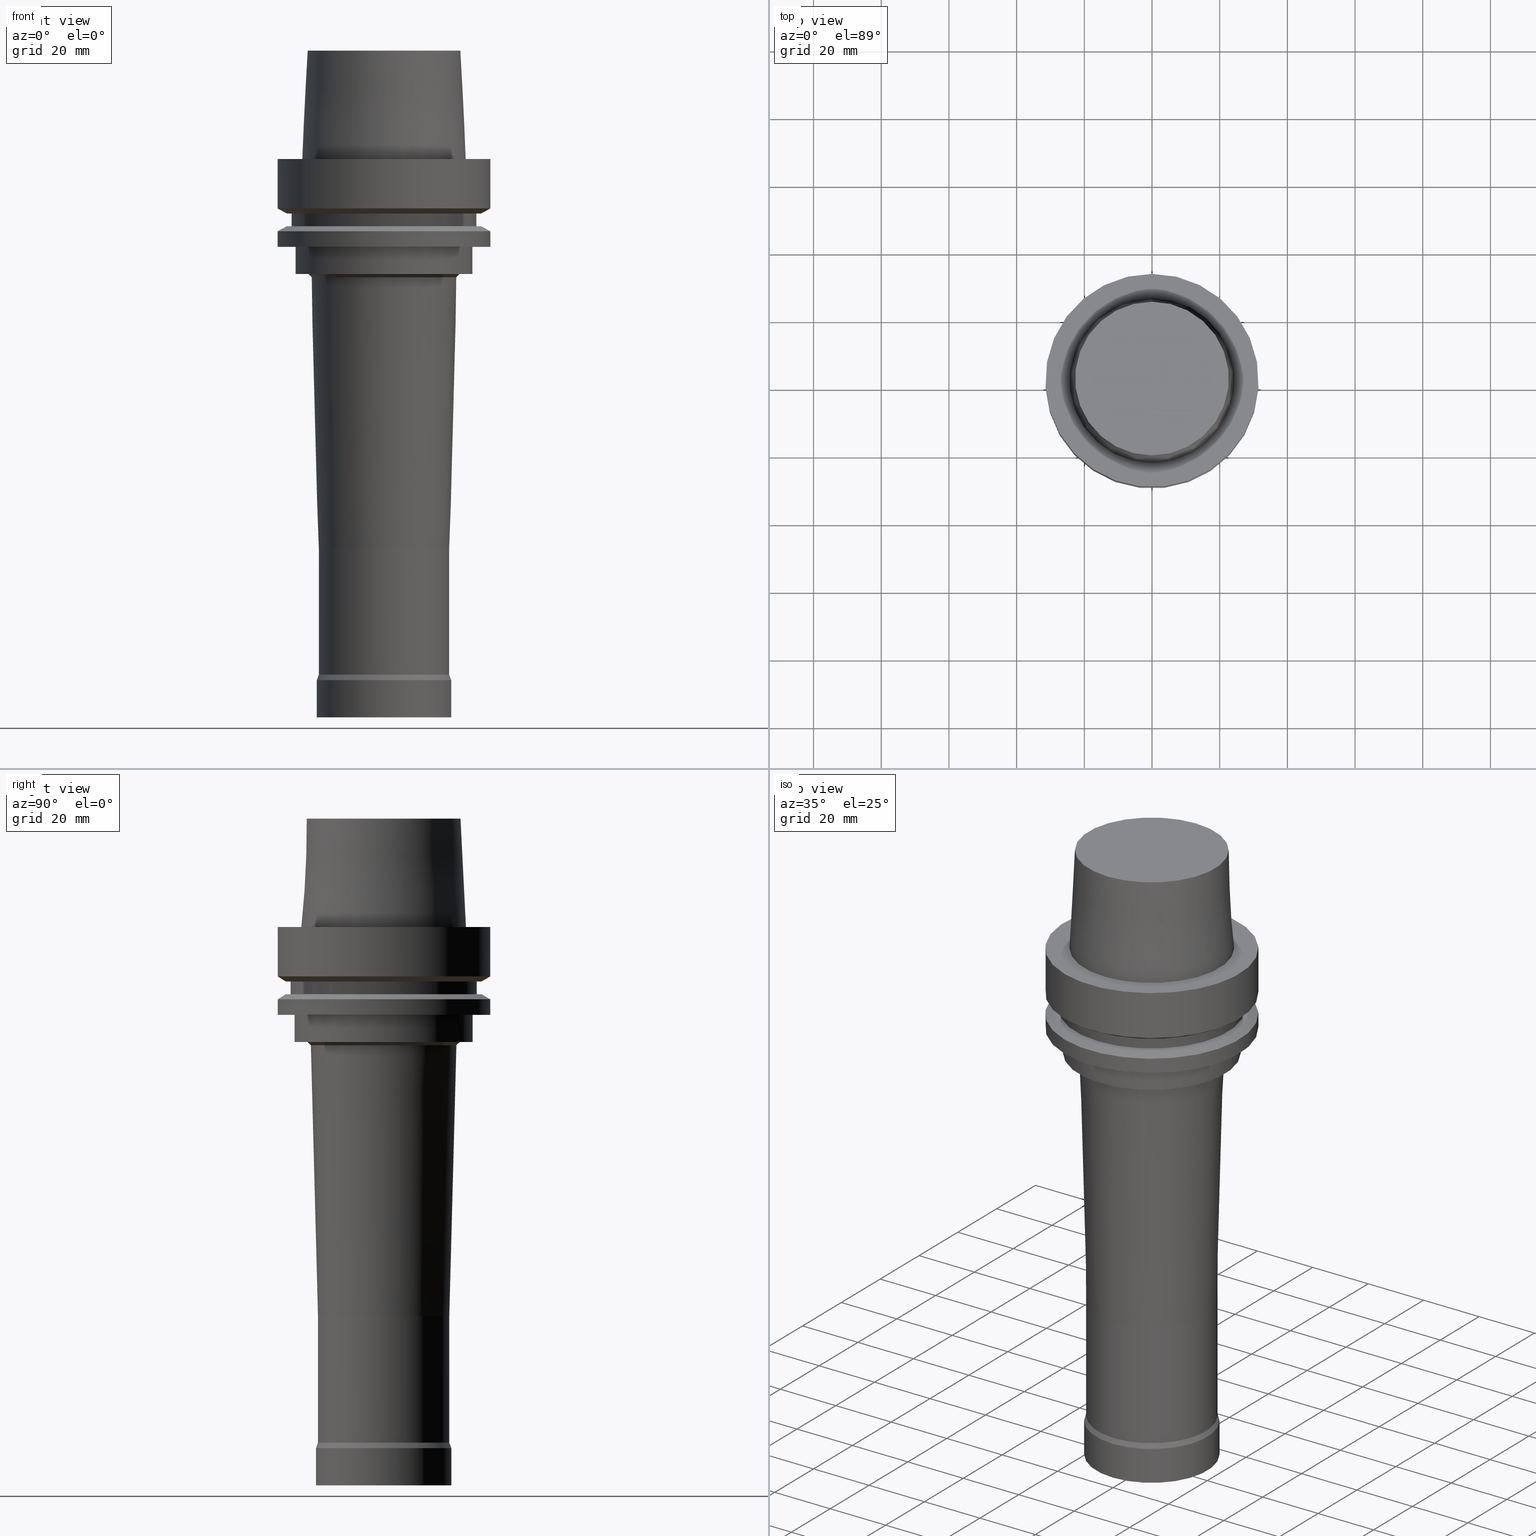
[diagram: canonical four-view strip — front | top / right | iso, engineering-drawing reading convention]
A machine part, canonical four-view strip (front | top / right | iso — engineering-drawing reading convention). The complete STEP part file that produces these views, byte-faithful:
ISO-10303-21;
HEADER;
FILE_DESCRIPTION((''),'1');
FILE_NAME('//Big_tech03/bigt/Translate/21_\X2\8F2A90ED7DDA\X0\-DXF/71_\X2\5207524A5DE55177\X0\/01_\X2\30A830F330C930DF30EB52A05DE5\X0\/01_\X2\30D530EB30AB30C330C830DF30EB\X0\ FCM/HSK/A 63/HSK-A63-FCM40114-165.stp','2012-05-30T06:37:30',(''),(''),'Spatial Interop R18','Kubotek KeyCreator V8.5.1 (14335)',' ');
FILE_SCHEMA(('CONFIG_CONTROL_DESIGN'));
ENDSEC;
DATA;
#1=DESIGN_CONTEXT('',#27,'design');
#2=APPLICATION_PROTOCOL_DEFINITION('INTERNATIONAL STANDARD','config_control_design',1994,#27);
#3=PRODUCT_CATEGORY_RELATIONSHIP('NONE','NONE',#28,#29);
#4=DATE_AND_TIME(#30,#31);
#5=DATE_TIME_ROLE('creation_date');
#6=DATE_TIME_ROLE('classification_date');
#7=PERSON_AND_ORGANIZATION_ROLE('creator');
#8=PERSON_AND_ORGANIZATION_ROLE('design_supplier');
#9=PERSON_AND_ORGANIZATION_ROLE('classification_officer');
#10=PERSON_AND_ORGANIZATION_ROLE('design_owner');
#11=APPROVAL_PERSON_ORGANIZATION(#32,#33,#34);
#12=APPROVAL_DATE_TIME(#4,#33);
#13=CC_DESIGN_APPROVAL(#33,(#35,#36,#37));
#14=CC_DESIGN_DATE_AND_TIME_ASSIGNMENT(#4,#5,(#37));
#15=CC_DESIGN_DATE_AND_TIME_ASSIGNMENT(#4,#6,(#35));
#16=CC_DESIGN_PERSON_AND_ORGANIZATION_ASSIGNMENT(#32,#10,(#38));
#17=CC_DESIGN_PERSON_AND_ORGANIZATION_ASSIGNMENT(#32,#7,(#37));
#18=CC_DESIGN_PERSON_AND_ORGANIZATION_ASSIGNMENT(#32,#7,(#36));
#19=CC_DESIGN_PERSON_AND_ORGANIZATION_ASSIGNMENT(#32,#8,(#36));
#20=CC_DESIGN_SECURITY_CLASSIFICATION(#35,(#36));
#21=CC_DESIGN_PERSON_AND_ORGANIZATION_ASSIGNMENT(#32,#9,(#35));
#22=SHAPE_DEFINITION_REPRESENTATION(#39,#40);
#23= (GEOMETRIC_REPRESENTATION_CONTEXT(3)GLOBAL_UNCERTAINTY_ASSIGNED_CONTEXT((#43))GLOBAL_UNIT_ASSIGNED_CONTEXT((#45,#46,#47))REPRESENTATION_CONTEXT('NONE','WORKSPACE'));
#27=APPLICATION_CONTEXT('CONFIGURATION CONTROLLED 3D DESIGNS OF MECHANICAL PARTS AND ASSEMBLIES');
#28=PRODUCT_CATEGORY('part','NONE');
#29=PRODUCT_RELATED_PRODUCT_CATEGORY('detail',' ',(#38));
#30=CALENDAR_DATE(2012,30,4);
#31=LOCAL_TIME(15,37,30.0,#49);
#32=PERSON_AND_ORGANIZATION(#50,#51);
#33=APPROVAL(#52,'SOLID MODEL');
#34=APPROVAL_ROLE('APPROVED');
#35=SECURITY_CLASSIFICATION('','',#53);
#36=PRODUCT_DEFINITION_FORMATION_WITH_SPECIFIED_SOURCE(' ','NONE',#38,.NOT_KNOWN.);
#37=PRODUCT_DEFINITION('NONE','NONE',#36,#1);
#38=PRODUCT('1','1','PART-1-DESC',(#54));
#39=PRODUCT_DEFINITION_SHAPE('NONE','NONE',#37);
#40=ADVANCED_BREP_SHAPE_REPRESENTATION('1',(#55,#56),#23);
#43=UNCERTAINTY_MEASURE_WITH_UNIT(LENGTH_MEASURE(1.0E-006),#45,'','');
#45= (CONVERSION_BASED_UNIT('MILLIMETRE',#59)LENGTH_UNIT()NAMED_UNIT(#62));
#46= (NAMED_UNIT(#64)PLANE_ANGLE_UNIT()SI_UNIT($,.RADIAN.));
#47= (NAMED_UNIT(#64)SOLID_ANGLE_UNIT()SI_UNIT($,.STERADIAN.));
#49=COORDINATED_UNIVERSAL_TIME_OFFSET(9,0,.AHEAD.);
#50=PERSON('','UNSPECIFIED',$,$,$,$);
#51=ORGANIZATION('UNSPECIFIED','UNSPECIFIED','UNSPECIFIED');
#52=APPROVAL_STATUS('approved');
#53=SECURITY_CLASSIFICATION_LEVEL('unclassified');
#54=MECHANICAL_CONTEXT('',#27,'mechanical');
#55=MANIFOLD_SOLID_BREP('1',#70);
#56=AXIS2_PLACEMENT_3D('',#71,#72,#73);
#59=LENGTH_MEASURE_WITH_UNIT(LENGTH_MEASURE(1.0),#74);
#62=DIMENSIONAL_EXPONENTS(1.0,0.0,0.0,0.0,0.0,0.0,0.0);
#64=DIMENSIONAL_EXPONENTS(0.0,0.0,0.0,0.0,0.0,0.0,0.0);
#70=CLOSED_SHELL('',(#75,#76,#77,#78,#79,#80,#81,#82,#83,#84,#85,#86,#87,#88,#89,#90,#91,#92,#93));
#71=CARTESIAN_POINT('',(0.0,0.0,0.0));
#72=DIRECTION('',(0.0,0.0,1.0));
#73=DIRECTION('',(1.0,0.0,0.0));
#74= (NAMED_UNIT(#62)LENGTH_UNIT()SI_UNIT(.MILLI.,.METRE.));
#75=ADVANCED_FACE('',(#95,#96),#97,.T.);
#76=ADVANCED_FACE('',(#98,#99),#100,.T.);
#77=ADVANCED_FACE('',(#101,#102),#103,.T.);
#78=ADVANCED_FACE('',(#104,#105),#106,.T.);
#79=ADVANCED_FACE('',(#107,#108),#109,.T.);
#80=ADVANCED_FACE('',(#110,#111),#112,.T.);
#81=ADVANCED_FACE('',(#113,#114),#115,.T.);
#82=ADVANCED_FACE('',(#116,#117),#118,.T.);
#83=ADVANCED_FACE('',(#119,#120),#121,.T.);
#84=ADVANCED_FACE('',(#122,#123),#124,.T.);
#85=ADVANCED_FACE('',(#125,#126),#127,.T.);
#86=ADVANCED_FACE('',(#128,#129),#130,.T.);
#87=ADVANCED_FACE('',(#131,#132),#133,.T.);
#88=ADVANCED_FACE('',(#134,#135),#136,.T.);
#89=ADVANCED_FACE('',(#137,#138),#139,.T.);
#90=ADVANCED_FACE('',(#140,#141),#142,.T.);
#91=ADVANCED_FACE('',(#143),#144,.T.);
#92=ADVANCED_FACE('',(#145),#146,.T.);
#93=ADVANCED_FACE('',(#147,#148),#149,.T.);
#95=FACE_OUTER_BOUND('',#150,.T.);
#96=FACE_BOUND('',#151,.T.);
#97=PLANE('',#152);
#98=FACE_BOUND('',#153,.T.);
#99=FACE_BOUND('',#154,.T.);
#100=CYLINDRICAL_SURFACE('',#155,31.5);
#101=FACE_BOUND('',#156,.T.);
#102=FACE_BOUND('',#157,.T.);
#103=CONICAL_SURFACE('',#158,30.19879763,1.04719755326565);
#104=FACE_BOUND('',#159,.T.);
#105=FACE_OUTER_BOUND('',#160,.T.);
#106=PLANE('',#161);
#107=FACE_BOUND('',#162,.T.);
#108=FACE_BOUND('',#163,.T.);
#109=CYLINDRICAL_SURFACE('',#164,27.5);
#110=FACE_OUTER_BOUND('',#165,.T.);
#111=FACE_BOUND('',#166,.T.);
#112=PLANE('',#167);
#113=FACE_BOUND('',#168,.T.);
#114=FACE_BOUND('',#169,.T.);
#115=CONICAL_SURFACE('',#170,30.19879763,1.04719755326565);
#116=FACE_BOUND('',#171,.T.);
#117=FACE_BOUND('',#172,.T.);
#118=CYLINDRICAL_SURFACE('',#173,31.5);
#119=FACE_BOUND('',#174,.T.);
#120=FACE_OUTER_BOUND('',#175,.T.);
#121=PLANE('',#176);
#122=FACE_BOUND('',#177,.T.);
#123=FACE_BOUND('',#178,.T.);
#124=CYLINDRICAL_SURFACE('',#179,26.3);
#125=FACE_BOUND('',#180,.T.);
#126=FACE_OUTER_BOUND('',#181,.T.);
#127=PLANE('',#182);
#128=FACE_BOUND('',#183,.T.);
#129=FACE_BOUND('',#184,.T.);
#130=CONICAL_SURFACE('',#185,22.0005254230877,0.808319086130303);
#131=FACE_BOUND('',#186,.T.);
#132=FACE_BOUND('',#187,.T.);
#133=CONICAL_SURFACE('',#188,20.4505252696709,0.0262420909819956);
#134=FACE_BOUND('',#189,.T.);
#135=FACE_BOUND('',#190,.T.);
#136=CYLINDRICAL_SURFACE('',#191,19.4);
#137=FACE_BOUND('',#192,.T.);
#138=FACE_BOUND('',#193,.T.);
#139=CONICAL_SURFACE('',#194,19.7,0.349471097158754);
#140=FACE_BOUND('',#195,.T.);
#141=FACE_BOUND('',#196,.T.);
#142=CYLINDRICAL_SURFACE('',#197,20.0);
#143=FACE_OUTER_BOUND('',#198,.T.);
#144=PLANE('',#199);
#145=FACE_OUTER_BOUND('',#200,.T.);
#146=PLANE('',#201);
#147=FACE_BOUND('',#202,.T.);
#148=FACE_BOUND('',#203,.T.);
#149=CONICAL_SURFACE('',#204,23.5149999985447,0.0499583958256321);
#150=EDGE_LOOP('',(#205));
#151=EDGE_LOOP('',(#206));
#152=AXIS2_PLACEMENT_3D('',#207,#208,#209);
#153=EDGE_LOOP('',(#210));
#154=EDGE_LOOP('',(#211));
#155=AXIS2_PLACEMENT_3D('',#212,#213,#214);
#156=EDGE_LOOP('',(#215));
#157=EDGE_LOOP('',(#216));
#158=AXIS2_PLACEMENT_3D('',#217,#218,#219);
#159=EDGE_LOOP('',(#220));
#160=EDGE_LOOP('',(#221));
#161=AXIS2_PLACEMENT_3D('',#222,#223,#224);
#162=EDGE_LOOP('',(#225));
#163=EDGE_LOOP('',(#226));
#164=AXIS2_PLACEMENT_3D('',#227,#228,#229);
#165=EDGE_LOOP('',(#230));
#166=EDGE_LOOP('',(#231));
#167=AXIS2_PLACEMENT_3D('',#232,#233,#234);
#168=EDGE_LOOP('',(#235));
#169=EDGE_LOOP('',(#236));
#170=AXIS2_PLACEMENT_3D('',#237,#238,#239);
#171=EDGE_LOOP('',(#240));
#172=EDGE_LOOP('',(#241));
#173=AXIS2_PLACEMENT_3D('',#242,#243,#244);
#174=EDGE_LOOP('',(#245));
#175=EDGE_LOOP('',(#246));
#176=AXIS2_PLACEMENT_3D('',#247,#248,#249);
#177=EDGE_LOOP('',(#250));
#178=EDGE_LOOP('',(#251));
#179=AXIS2_PLACEMENT_3D('',#252,#253,#254);
#180=EDGE_LOOP('',(#255));
#181=EDGE_LOOP('',(#256));
#182=AXIS2_PLACEMENT_3D('',#257,#258,#259);
#183=EDGE_LOOP('',(#260));
#184=EDGE_LOOP('',(#261));
#185=AXIS2_PLACEMENT_3D('',#262,#263,#264);
#186=EDGE_LOOP('',(#265));
#187=EDGE_LOOP('',(#266));
#188=AXIS2_PLACEMENT_3D('',#267,#268,#269);
#189=EDGE_LOOP('',(#270));
#190=EDGE_LOOP('',(#271));
#191=AXIS2_PLACEMENT_3D('',#272,#273,#274);
#192=EDGE_LOOP('',(#275));
#193=EDGE_LOOP('',(#276));
#194=AXIS2_PLACEMENT_3D('',#277,#278,#279);
#195=EDGE_LOOP('',(#280));
#196=EDGE_LOOP('',(#281));
#197=AXIS2_PLACEMENT_3D('',#282,#283,#284);
#198=EDGE_LOOP('',(#285));
#199=AXIS2_PLACEMENT_3D('',#286,#287,#288);
#200=EDGE_LOOP('',(#289));
#201=AXIS2_PLACEMENT_3D('',#290,#291,#292);
#202=EDGE_LOOP('',(#293));
#203=EDGE_LOOP('',(#294));
#204=AXIS2_PLACEMENT_3D('',#295,#296,#297);
#205=ORIENTED_EDGE('',*,*,#298,.F.);
#206=ORIENTED_EDGE('',*,*,#299,.T.);
#207=CARTESIAN_POINT('',(-3.40924878510528E-031,27.907500000104,3.36768305473321E-015));
#208=DIRECTION('',(-6.12323399573677E-017,-1.08546795432774E-016,1.0));
#209=DIRECTION('',(1.14737270099915E-032,-1.0,-1.08546795432774E-016));
#210=ORIENTED_EDGE('',*,*,#300,.F.);
#211=ORIENTED_EDGE('',*,*,#298,.T.);
#212=CARTESIAN_POINT('',(4.47684973986342E-016,8.95369947972684E-016,-7.311250465));
#213=DIRECTION('',(-6.12323399573677E-017,-1.22464679914735E-016,1.0));
#214=DIRECTION('',(-1.23259516440783E-032,1.0,1.22464679914735E-016));
#215=ORIENTED_EDGE('',*,*,#301,.F.);
#216=ORIENTED_EDGE('',*,*,#300,.T.);
#217=CARTESIAN_POINT('',(9.41370714892619E-016,1.88274142978524E-015,-15.373750465));
#218=DIRECTION('',(-6.12323399573677E-017,-1.22464679914735E-016,1.0));
#219=DIRECTION('',(-1.23259516440783E-032,1.0,1.22464679914735E-016));
#220=ORIENTED_EDGE('',*,*,#302,.F.);
#221=ORIENTED_EDGE('',*,*,#301,.T.);
#222=CARTESIAN_POINT('',(9.87371481812553E-016,28.19879763,-16.125));
#223=DIRECTION('',(6.12323399573677E-017,1.22464679914735E-016,-1.0));
#224=DIRECTION('',(-1.23259516440783E-032,1.0,1.22464679914735E-016));
#225=ORIENTED_EDGE('',*,*,#303,.F.);
#226=ORIENTED_EDGE('',*,*,#302,.T.);
#227=CARTESIAN_POINT('',(1.10218211923262E-015,2.20436423846524E-015,-18.0));
#228=DIRECTION('',(-6.12323399573677E-017,-1.22464679914735E-016,1.0));
#229=DIRECTION('',(-1.23259516440783E-032,1.0,1.22464679914735E-016));
#230=ORIENTED_EDGE('',*,*,#304,.F.);
#231=ORIENTED_EDGE('',*,*,#303,.T.);
#232=CARTESIAN_POINT('',(1.21699275665268E-015,28.19879763,-19.875));
#233=DIRECTION('',(-6.12323399573677E-017,-1.22464679914735E-016,1.0));
#234=DIRECTION('',(1.23259516440783E-032,-1.0,-1.22464679914735E-016));
#235=ORIENTED_EDGE('',*,*,#305,.F.);
#236=ORIENTED_EDGE('',*,*,#304,.T.);
#237=CARTESIAN_POINT('',(1.26299352357262E-015,2.52598704714523E-015,-20.626249535));
#238=DIRECTION('',(6.12323399573677E-017,1.22464679914735E-016,-1.0));
#239=DIRECTION('',(-1.23259516440783E-032,1.0,1.22464679914735E-016));
#240=ORIENTED_EDGE('',*,*,#306,.F.);
#241=ORIENTED_EDGE('',*,*,#305,.T.);
#242=CARTESIAN_POINT('',(1.45051756469205E-015,2.90103512938411E-015,-23.688749535));
#243=DIRECTION('',(-6.12323399573677E-017,-1.22464679914735E-016,1.0));
#244=DIRECTION('',(-1.23259516440783E-032,1.0,1.22464679914735E-016));
#245=ORIENTED_EDGE('',*,*,#307,.F.);
#246=ORIENTED_EDGE('',*,*,#306,.T.);
#247=CARTESIAN_POINT('',(1.59204083889156E-015,28.9,-26.0));
#248=DIRECTION('',(6.12323399573677E-017,1.22464679914735E-016,-1.0));
#249=DIRECTION('',(-1.23259516440783E-032,1.0,1.22464679914735E-016));
#250=ORIENTED_EDGE('',*,*,#308,.F.);
#251=ORIENTED_EDGE('',*,*,#307,.T.);
#252=CARTESIAN_POINT('',(1.83697019872103E-015,3.67394039744206E-015,-30.0));
#253=DIRECTION('',(-6.12323399573677E-017,-1.22464679914735E-016,1.0));
#254=DIRECTION('',(-1.23259516440783E-032,1.0,1.22464679914735E-016));
#255=ORIENTED_EDGE('',*,*,#309,.F.);
#256=ORIENTED_EDGE('',*,*,#308,.T.);
#257=CARTESIAN_POINT('',(2.0818995585505E-015,24.4000001534169,-34.0));
#258=DIRECTION('',(6.12323399573677E-017,1.22464679914735E-016,-1.0));
#259=DIRECTION('',(-1.23259516440783E-032,1.0,1.22464679914735E-016));
#260=ORIENTED_EDGE('',*,*,#310,.F.);
#261=ORIENTED_EDGE('',*,*,#309,.T.);
#262=CARTESIAN_POINT('',(2.11111272769941E-015,4.22222545539882E-015,-34.4770872576362));
#263=DIRECTION('',(-6.12323399573677E-017,-1.22464679914735E-016,1.0));
#264=DIRECTION('',(-1.23259516440783E-032,1.0,1.22464679914735E-016));
#265=ORIENTED_EDGE('',*,*,#311,.F.);
#266=ORIENTED_EDGE('',*,*,#310,.T.);
#267=CARTESIAN_POINT('',(4.59102061506136E-015,9.18204123012272E-015,-74.9770565400213));
#268=DIRECTION('',(-6.12323399573676E-017,-1.22464679914735E-016,1.0));
#269=DIRECTION('',(-1.23259516440783E-032,1.0,1.22464679914735E-016));
#270=ORIENTED_EDGE('',*,*,#312,.F.);
#271=ORIENTED_EDGE('',*,*,#311,.T.);
#272=CARTESIAN_POINT('',(8.185341069429E-015,1.6370682138858E-014,-133.676764192385));
#273=DIRECTION('',(-6.12323399573677E-017,-1.22464679914735E-016,1.0));
#274=DIRECTION('',(-1.23259516440783E-032,1.0,1.22464679914735E-016));
#275=ORIENTED_EDGE('',*,*,#313,.F.);
#276=ORIENTED_EDGE('',*,*,#312,.T.);
#277=CARTESIAN_POINT('',(9.37937357950911E-015,1.87587471590182E-014,-153.17679491));
#278=DIRECTION('',(6.12323399573677E-017,1.22464679914735E-016,-1.0));
#279=DIRECTION('',(-1.23259516440783E-032,1.0,1.22464679914735E-016));
#280=ORIENTED_EDGE('',*,*,#314,.F.);
#281=ORIENTED_EDGE('',*,*,#313,.T.);
#282=CARTESIAN_POINT('',(9.76655822320014E-015,1.95331164464003E-014,-159.5));
#283=DIRECTION('',(-6.12323399573677E-017,-1.22464679914735E-016,1.0));
#284=DIRECTION('',(-1.23259516440783E-032,1.0,1.22464679914735E-016));
#285=ORIENTED_EDGE('',*,*,#314,.T.);
#286=CARTESIAN_POINT('',(1.01033360929657E-014,10.0,-165.0));
#287=DIRECTION('',(6.12323399573677E-017,1.22464679914735E-016,-1.0));
#288=DIRECTION('',(-1.23259516440783E-032,1.0,1.22464679914735E-016));
#289=ORIENTED_EDGE('',*,*,#315,.F.);
#290=CARTESIAN_POINT('',(-1.95943487863577E-015,11.3574999984407,32.0));
#291=DIRECTION('',(-6.12323399573677E-017,-1.22464679914735E-016,1.0));
#292=DIRECTION('',(1.23259516440783E-032,-1.0,-1.22464679914735E-016));
#293=ORIENTED_EDGE('',*,*,#299,.F.);
#294=ORIENTED_EDGE('',*,*,#315,.T.);
#295=CARTESIAN_POINT('',(-9.79717439317883E-016,-1.95943487863576E-015,16.0));
#296=DIRECTION('',(6.12323399573676E-017,1.22464679914735E-016,-1.0));
#297=DIRECTION('',(-1.23259516440783E-032,1.0,1.22464679914735E-016));
#298=EDGE_CURVE('',#316,#316,#317,.T.);
#299=EDGE_CURVE('',#318,#318,#319,.T.);
#300=EDGE_CURVE('',#320,#320,#321,.T.);
#301=EDGE_CURVE('',#322,#322,#323,.T.);
#302=EDGE_CURVE('',#324,#324,#325,.T.);
#303=EDGE_CURVE('',#326,#326,#327,.T.);
#304=EDGE_CURVE('',#328,#328,#329,.T.);
#305=EDGE_CURVE('',#330,#330,#331,.T.);
#306=EDGE_CURVE('',#332,#332,#333,.T.);
#307=EDGE_CURVE('',#334,#334,#335,.T.);
#308=EDGE_CURVE('',#336,#336,#337,.T.);
#309=EDGE_CURVE('',#338,#338,#339,.T.);
#310=EDGE_CURVE('',#340,#340,#341,.T.);
#311=EDGE_CURVE('',#342,#342,#343,.T.);
#312=EDGE_CURVE('',#344,#344,#345,.T.);
#313=EDGE_CURVE('',#346,#346,#347,.T.);
#314=EDGE_CURVE('',#348,#348,#349,.T.);
#315=EDGE_CURVE('',#350,#350,#351,.T.);
#316=VERTEX_POINT('',#352);
#317=CIRCLE('',#353,31.5);
#318=VERTEX_POINT('',#354);
#319=CIRCLE('',#355,24.3150000002079);
#320=VERTEX_POINT('',#356);
#321=CIRCLE('',#357,31.5);
#322=VERTEX_POINT('',#358);
#323=CIRCLE('',#359,28.89759526);
#324=VERTEX_POINT('',#360);
#325=CIRCLE('',#361,27.5);
#326=VERTEX_POINT('',#362);
#327=CIRCLE('',#363,27.5);
#328=VERTEX_POINT('',#364);
#329=CIRCLE('',#365,28.89759526);
#330=VERTEX_POINT('',#366);
#331=CIRCLE('',#367,31.5);
#332=VERTEX_POINT('',#368);
#333=CIRCLE('',#369,31.5);
#334=VERTEX_POINT('',#370);
#335=CIRCLE('',#371,26.3);
#336=VERTEX_POINT('',#372);
#337=CIRCLE('',#373,26.3);
#338=VERTEX_POINT('',#374);
#339=CIRCLE('',#375,22.5000003068337);
#340=VERTEX_POINT('',#376);
#341=CIRCLE('',#377,21.5010505393417);
#342=VERTEX_POINT('',#378);
#343=CIRCLE('',#379,19.4);
#344=VERTEX_POINT('',#380);
#345=CIRCLE('',#381,19.4);
#346=VERTEX_POINT('',#382);
#347=CIRCLE('',#383,20.0);
#348=VERTEX_POINT('',#384);
#349=CIRCLE('',#385,20.0);
#350=VERTEX_POINT('',#386);
#351=CIRCLE('',#387,22.7149999968815);
#352=CARTESIAN_POINT('',(-3.8214424279273E-031,31.5,3.75763741731416E-015));
#353=AXIS2_PLACEMENT_3D('',#388,#389,#390);
#354=CARTESIAN_POINT('',(-2.99705514228327E-031,24.3150000002079,2.97772869215225E-015));
#355=AXIS2_PLACEMENT_3D('',#391,#392,#393);
#356=CARTESIAN_POINT('',(8.95369947972684E-016,31.5,-14.62250093));
#357=AXIS2_PLACEMENT_3D('',#394,#395,#396);
#358=CARTESIAN_POINT('',(9.87371481812553E-016,28.89759526,-16.125));
#359=AXIS2_PLACEMENT_3D('',#397,#398,#399);
#360=CARTESIAN_POINT('',(9.87371481812553E-016,27.5,-16.125));
#361=AXIS2_PLACEMENT_3D('',#400,#401,#402);
#362=CARTESIAN_POINT('',(1.21699275665268E-015,27.5,-19.875));
#363=AXIS2_PLACEMENT_3D('',#403,#404,#405);
#364=CARTESIAN_POINT('',(1.21699275665268E-015,28.89759526,-19.875));
#365=AXIS2_PLACEMENT_3D('',#406,#407,#408);
#366=CARTESIAN_POINT('',(1.30899429049255E-015,31.5,-21.37749907));
#367=AXIS2_PLACEMENT_3D('',#409,#410,#411);
#368=CARTESIAN_POINT('',(1.59204083889156E-015,31.5,-26.0));
#369=AXIS2_PLACEMENT_3D('',#412,#413,#414);
#370=CARTESIAN_POINT('',(1.59204083889156E-015,26.3,-26.0));
#371=AXIS2_PLACEMENT_3D('',#415,#416,#417);
#372=CARTESIAN_POINT('',(2.0818995585505E-015,26.3,-34.0));
#373=AXIS2_PLACEMENT_3D('',#418,#419,#420);
#374=CARTESIAN_POINT('',(2.0818995585505E-015,22.5000003068337,-34.0));
#375=AXIS2_PLACEMENT_3D('',#421,#422,#423);
#376=CARTESIAN_POINT('',(2.14032589684832E-015,21.5010505393417,-34.9541745152725));
#377=AXIS2_PLACEMENT_3D('',#424,#425,#426);
#378=CARTESIAN_POINT('',(7.04171533327441E-015,19.4,-114.99993856477));
#379=AXIS2_PLACEMENT_3D('',#427,#428,#429);
#380=CARTESIAN_POINT('',(9.32896680558359E-015,19.4,-152.35358982));
#381=AXIS2_PLACEMENT_3D('',#430,#431,#432);
#382=CARTESIAN_POINT('',(9.42978035343462E-015,20.0,-154.0));
#383=AXIS2_PLACEMENT_3D('',#433,#434,#435);
#384=CARTESIAN_POINT('',(1.01033360929657E-014,20.0,-165.0));
#385=AXIS2_PLACEMENT_3D('',#436,#437,#438);
#386=CARTESIAN_POINT('',(-1.95943487863577E-015,22.7149999968815,32.0));
#387=AXIS2_PLACEMENT_3D('',#439,#440,#441);
#388=CARTESIAN_POINT('',(0.0,0.0,0.0));
#389=DIRECTION('',(6.12323399573677E-017,1.22464679914735E-016,-1.0));
#390=DIRECTION('',(-1.23259516440783E-032,1.0,1.22464679914735E-016));
#391=CARTESIAN_POINT('',(0.0,0.0,0.0));
#392=DIRECTION('',(6.12323399573677E-017,1.22464679914735E-016,-1.0));
#393=DIRECTION('',(-1.23259516440783E-032,1.0,1.22464679914735E-016));
#394=CARTESIAN_POINT('',(8.95369947972685E-016,1.79073989594537E-015,-14.62250093));
#395=DIRECTION('',(6.12323399573677E-017,1.22464679914735E-016,-1.0));
#396=DIRECTION('',(-1.23259516440783E-032,1.0,1.22464679914735E-016));
#397=CARTESIAN_POINT('',(9.87371481812553E-016,1.97474296362511E-015,-16.125));
#398=DIRECTION('',(6.12323399573677E-017,1.22464679914735E-016,-1.0));
#399=DIRECTION('',(-1.23259516440783E-032,1.0,1.22464679914735E-016));
#400=CARTESIAN_POINT('',(9.87371481812553E-016,1.97474296362511E-015,-16.125));
#401=DIRECTION('',(6.12323399573677E-017,1.22464679914735E-016,-1.0));
#402=DIRECTION('',(-1.23259516440783E-032,1.0,1.22464679914735E-016));
#403=CARTESIAN_POINT('',(1.21699275665268E-015,2.43398551330536E-015,-19.875));
#404=DIRECTION('',(6.12323399573677E-017,1.22464679914735E-016,-1.0));
#405=DIRECTION('',(-1.23259516440783E-032,1.0,1.22464679914735E-016));
#406=CARTESIAN_POINT('',(1.21699275665268E-015,2.43398551330536E-015,-19.875));
#407=DIRECTION('',(6.12323399573677E-017,1.22464679914735E-016,-1.0));
#408=DIRECTION('',(-1.23259516440783E-032,1.0,1.22464679914735E-016));
#409=CARTESIAN_POINT('',(1.30899429049255E-015,2.6179885809851E-015,-21.37749907));
#410=DIRECTION('',(6.12323399573677E-017,1.22464679914735E-016,-1.0));
#411=DIRECTION('',(-1.23259516440783E-032,1.0,1.22464679914735E-016));
#412=CARTESIAN_POINT('',(1.59204083889156E-015,3.18408167778312E-015,-26.0));
#413=DIRECTION('',(6.12323399573677E-017,1.22464679914735E-016,-1.0));
#414=DIRECTION('',(-1.23259516440783E-032,1.0,1.22464679914735E-016));
#415=CARTESIAN_POINT('',(1.59204083889156E-015,3.18408167778312E-015,-26.0));
#416=DIRECTION('',(6.12323399573677E-017,1.22464679914735E-016,-1.0));
#417=DIRECTION('',(-1.23259516440783E-032,1.0,1.22464679914735E-016));
#418=CARTESIAN_POINT('',(2.0818995585505E-015,4.163799117101E-015,-34.0));
#419=DIRECTION('',(6.12323399573677E-017,1.22464679914735E-016,-1.0));
#420=DIRECTION('',(-1.23259516440783E-032,1.0,1.22464679914735E-016));
#421=CARTESIAN_POINT('',(2.0818995585505E-015,4.163799117101E-015,-34.0));
#422=DIRECTION('',(6.12323399573677E-017,1.22464679914735E-016,-1.0));
#423=DIRECTION('',(-1.23259516440783E-032,1.0,1.22464679914735E-016));
#424=CARTESIAN_POINT('',(2.14032589684832E-015,4.28065179369664E-015,-34.9541745152725));
#425=DIRECTION('',(6.12323399573677E-017,1.22464679914735E-016,-1.0));
#426=DIRECTION('',(-1.23259516440783E-032,1.0,1.22464679914735E-016));
#427=CARTESIAN_POINT('',(7.04171533327441E-015,1.40834306665488E-014,-114.99993856477));
#428=DIRECTION('',(6.12323399573677E-017,1.22464679914735E-016,-1.0));
#429=DIRECTION('',(-1.23259516440783E-032,1.0,1.22464679914735E-016));
#430=CARTESIAN_POINT('',(9.32896680558359E-015,1.86579336111672E-014,-152.35358982));
#431=DIRECTION('',(6.12323399573677E-017,1.22464679914735E-016,-1.0));
#432=DIRECTION('',(-1.23259516440783E-032,1.0,1.22464679914735E-016));
#433=CARTESIAN_POINT('',(9.42978035343462E-015,1.88595607068692E-014,-154.0));
#434=DIRECTION('',(6.12323399573677E-017,1.22464679914735E-016,-1.0));
#435=DIRECTION('',(-1.23259516440783E-032,1.0,1.22464679914735E-016));
#436=CARTESIAN_POINT('',(1.01033360929657E-014,2.02066721859313E-014,-165.0));
#437=DIRECTION('',(6.12323399573677E-017,1.22464679914735E-016,-1.0));
#438=DIRECTION('',(-1.23259516440783E-032,1.0,1.22464679914735E-016));
#439=CARTESIAN_POINT('',(-1.95943487863577E-015,-3.91886975727153E-015,32.0));
#440=DIRECTION('',(6.12323399573677E-017,1.22464679914735E-016,-1.0));
#441=DIRECTION('',(-1.23259516440783E-032,1.0,1.22464679914735E-016));
ENDSEC;
END-ISO-10303-21;
